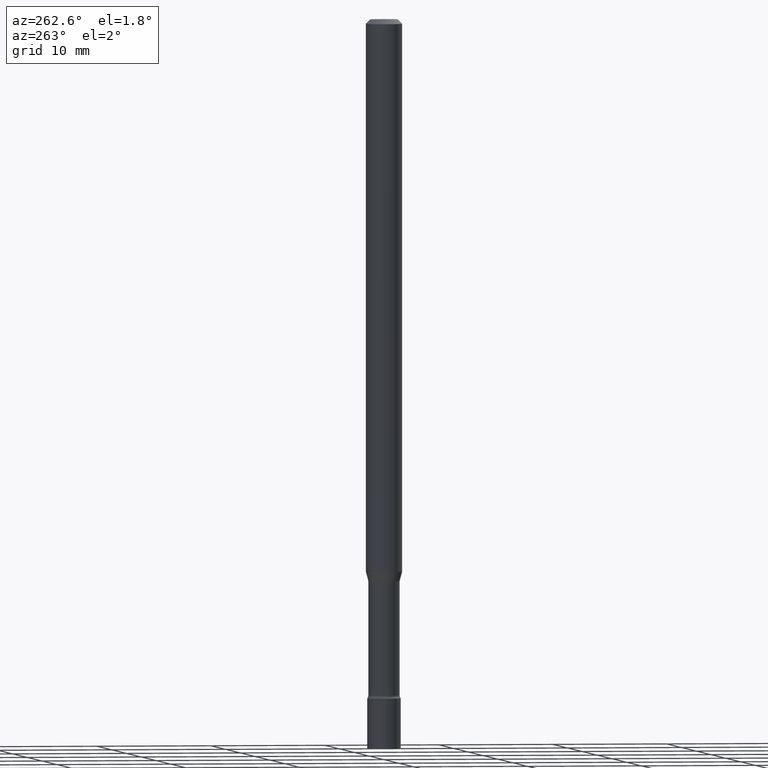
[diagram: clean part render]
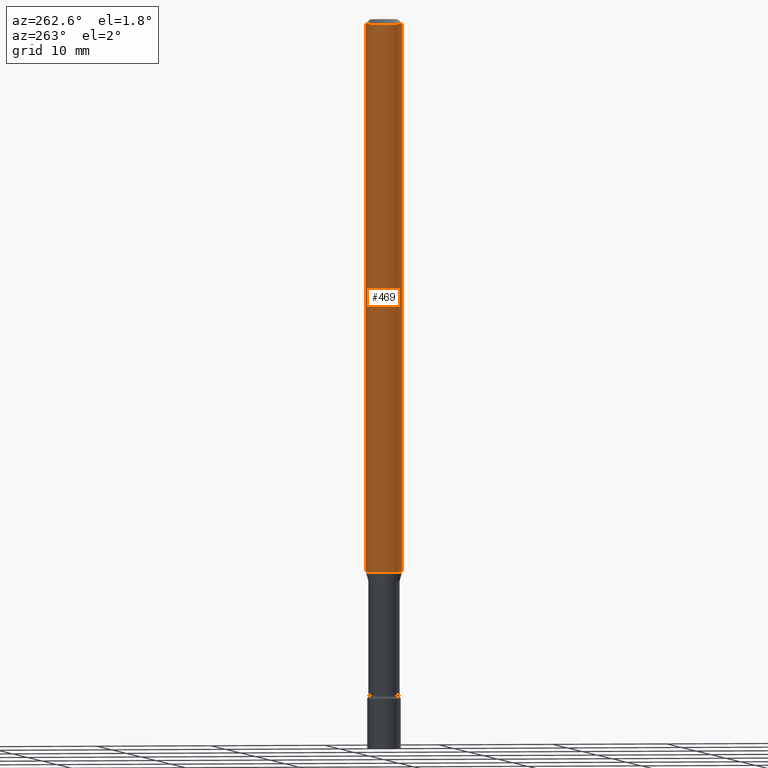
[diagram: same view with one face highlighted and labeled with its STEP entity id]
A machine part, auxiliary view. The second image highlights one B-rep face of the part: STEP entity #469.
In plain terms, the highlighted cylindrical surface (edge-blend (fillet) strip) has radius 1.5875 mm, axis along (-0, 0, 1).
Its self-contained STEP definition (entity closure, byte-faithful):
#16 = DIRECTION ( 'NONE',  ( -2.445499533881974174E-29, 3.491437335032362503E-15, 1.000000000000000000 ) ) ;
#50 = CARTESIAN_POINT ( 'NONE',  ( 4.440892098500625669E-16, 0.06250000000000000000, -2.182148334395226318E-16 ) ) ;
#57 = CARTESIAN_POINT ( 'NONE',  ( -4.364351673553916201E-16, -0.06250000000000000000, 2.182148334395226318E-16 ) ) ;
#60 = DIRECTION ( 'NONE',  ( -2.445499533881974174E-29, 3.491437335032362109E-15, 1.000000000000000000 ) ) ;
#63 = EDGE_CURVE ( 'NONE', #377, #337, #414, .T. ) ;
#64 = CIRCLE ( 'NONE', #389, 0.06250000000000000000 ) ;
#88 = DIRECTION ( 'NONE',  ( -2.445499533881974174E-29, 3.491437335032362503E-15, 1.000000000000000000 ) ) ;
#102 = EDGE_CURVE ( 'NONE', #175, #377, #64, .T. ) ;
#113 = CIRCLE ( 'NONE', #308, 0.06250000000000000000 ) ;
#138 = ORIENTED_EDGE ( 'NONE', *, *, #465, .F. ) ;
#149 = AXIS2_PLACEMENT_3D ( 'NONE', #249, #413, #207 ) ;
#158 = EDGE_LOOP ( 'NONE', ( #138, #329, #400, #493 ) ) ;
#159 = CARTESIAN_POINT ( 'NONE',  ( 4.440892098501091590E-16, 0.06249999999999995143, -0.01500000000000024751 ) ) ;
#175 = VERTEX_POINT ( 'NONE', #220 ) ;
#176 = LINE ( 'NONE', #50, #309 ) ;
#207 = DIRECTION ( 'NONE',  ( -6.982962677686265922E-15, -1.000000000000000000, 3.491437335032362109E-15 ) ) ;
#216 = DIRECTION ( 'NONE',  ( -6.982962677686265922E-15, -1.000000000000000000, 4.370956789862821150E-15 ) ) ;
#220 = CARTESIAN_POINT ( 'NONE',  ( 4.440892098501089617E-16, 0.06249999999999341499, -1.893464170676043556 ) ) ;
#233 = VECTOR ( 'NONE', #16, 39.37007874015748143 ) ;
#237 = CARTESIAN_POINT ( 'NONE',  ( -4.364351673553451266E-16, -0.06250000000000657807, -1.893464170676043112 ) ) ;
#242 = EDGE_CURVE ( 'NONE', #318, #337, #113, .T. ) ;
#249 = CARTESIAN_POINT ( 'NONE',  ( 0.000000000000000000, 0.000000000000000000, 0.000000000000000000 ) ) ;
#308 = AXIS2_PLACEMENT_3D ( 'NONE', #426, #351, #508 ) ;
#309 = VECTOR ( 'NONE', #88, 39.37007874015748143 ) ;
#318 = VERTEX_POINT ( 'NONE', #159 ) ;
#329 = ORIENTED_EDGE ( 'NONE', *, *, #102, .T. ) ;
#337 = VERTEX_POINT ( 'NONE', #434 ) ;
#351 = DIRECTION ( 'NONE',  ( -2.445499533881974174E-29, 3.491437335032362109E-15, 1.000000000000000000 ) ) ;
#375 = CARTESIAN_POINT ( 'NONE',  ( 4.630465746810483231E-29, -6.610911498044426142E-15, -1.893464170676043334 ) ) ;
#377 = VERTEX_POINT ( 'NONE', #237 ) ;
#389 = AXIS2_PLACEMENT_3D ( 'NONE', #375, #60, #216 ) ;
#400 = ORIENTED_EDGE ( 'NONE', *, *, #63, .T. ) ;
#413 = DIRECTION ( 'NONE',  ( -2.445499533881974174E-29, 3.491437335032362109E-15, 1.000000000000000000 ) ) ;
#414 = LINE ( 'NONE', #57, #233 ) ;
#416 = CYLINDRICAL_SURFACE ( 'NONE', #149, 0.06250000000000000000 ) ;
#418 = FACE_OUTER_BOUND ( 'NONE', #158, .T. ) ;
#426 = CARTESIAN_POINT ( 'NONE',  ( 3.668249300822969055E-31, -5.237156002548554183E-17, -0.01500000000000003067 ) ) ;
#434 = CARTESIAN_POINT ( 'NONE',  ( -4.364351673553912750E-16, -0.06250000000000005551, -0.01499999999999981209 ) ) ;
#465 = EDGE_CURVE ( 'NONE', #175, #318, #176, .T. ) ;
#469 = ADVANCED_FACE ( 'NONE', ( #418 ), #416, .T. ) ;
#493 = ORIENTED_EDGE ( 'NONE', *, *, #242, .F. ) ;
#508 = DIRECTION ( 'NONE',  ( -6.982962677686265922E-15, -1.000000000000000000, 3.483106191921935554E-15 ) ) ;